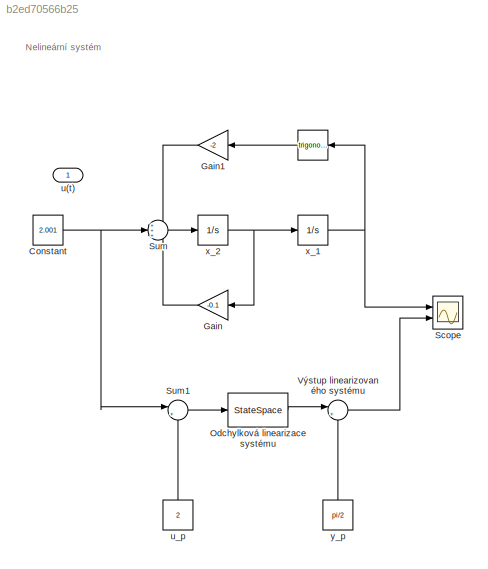
MODEL slx_b2ed70566b25
KIND model
CONFIG AbsTol = auto
CONFIG EnableMultiTasking = off
CONFIG FixedStep = auto
CONFIG MaxStep = auto
CONFIG MinStep = auto
CONFIG RelTol = 1e-3
CONFIG SampleTimeConstraint = Unconstrained
CONFIG Solver = VariableStepAuto
CONFIG SolverName = VariableStepAuto
CONFIG StartTime = 0.0
CONFIG StopTime = 10
BLOCK [Trigonometry]  
  Ports = [1, 1]
BLOCK [Constant] Constant
  Value = 2.001
BLOCK [Gain] Gain
  Gain = -0.1
  OutDataTypeStr = Inherit: Inherit via internal rule
  ParamDataTypeStr = Inherit: Inherit via internal rule
  SaturateOnIntegerOverflow = off
BLOCK [Gain] Gain1
  Gain = -2
  OutDataTypeStr = Inherit: Inherit via internal rule
  ParamDataTypeStr = Inherit: Inherit via internal rule
  SaturateOnIntegerOverflow = off
BLOCK [StateSpace] Odchylková linearizace systému
  A = [0 1; 0 -0.1]
  B = [0;1]
  C = [1 0]
  D = 0
  InitialCondition = [0 ;0]
  Ports = [1, 1]
BLOCK [Scope] Scope
  Floating = off
  NumInputPorts = 2
  Ports = [2]
  ScopeSpecificationString = Simulink.scopes.TimeScopeBlockCfg('CurrentConfiguration', extmgr.ConfigurationSet(extmgr.Configuration('Core','General UI',true),extmgr.Configuration('Core','Source UI',true),extmgr.Configuration('Sources','WiredSimulink',true,'DataLoggingVariableName','outputs','DataLogging',true,'DataLoggingSaveFormat','StructureWithTime'),extmgr.Configuration('Visuals','Time Domain',true,'SerializedDisplays',{s...<+1489ch>
BLOCK [Sum] Sum
  IconShape = round
  InputSameDT = off
  Inputs = +++
  OutDataTypeStr = Inherit: Inherit via internal rule
  Ports = [3, 1]
  SaturateOnIntegerOverflow = off
BLOCK [Sum] Sum1
  IconShape = round
  InputSameDT = off
  Inputs = |+-
  OutDataTypeStr = Inherit: Inherit via internal rule
  Ports = [2, 1]
  SaturateOnIntegerOverflow = off
BLOCK [Sum] Výstup linearizovaného systému
  IconShape = round
  InputSameDT = off
  Inputs = |++
  OutDataTypeStr = Inherit: Inherit via internal rule
  Ports = [2, 1]
  SaturateOnIntegerOverflow = off
BLOCK [Inport] u(t)
  IconDisplay = Port number
BLOCK [Constant] u_p
  Value = 2
BLOCK [Integrator] x_1
  InitialCondition = pi/2
  Ports = [1, 1]
BLOCK [Integrator] x_2
  Ports = [1, 1]
BLOCK [Constant] y_p
  Value = pi/2
ANNOTATION (root): Nelineární systém
LINE  :1 -> Gain1:1
NET Constant:1 -> Sum1:1, Sum:2
LINE Gain1:1 -> Sum:1
LINE Gain:1 -> Sum:3
LINE Odchylková linearizace systému:1 -> Výstup linearizovaného systému:1
LINE Sum1:1 -> Odchylková linearizace systému:1
LINE Sum:1 -> x_2:1
LINE Výstup linearizovaného systému:1 -> Scope:2
LINE u_p:1 -> Sum1:2
NET x_1:1 ->  :1, Scope:1
NET x_2:1 -> Gain:1, x_1:1
LINE y_p:1 -> Výstup linearizovaného systému:2
note: NET lines group one-source signal fan-out (src -> all destinations, sorted); 1:1 wires keep LINE
